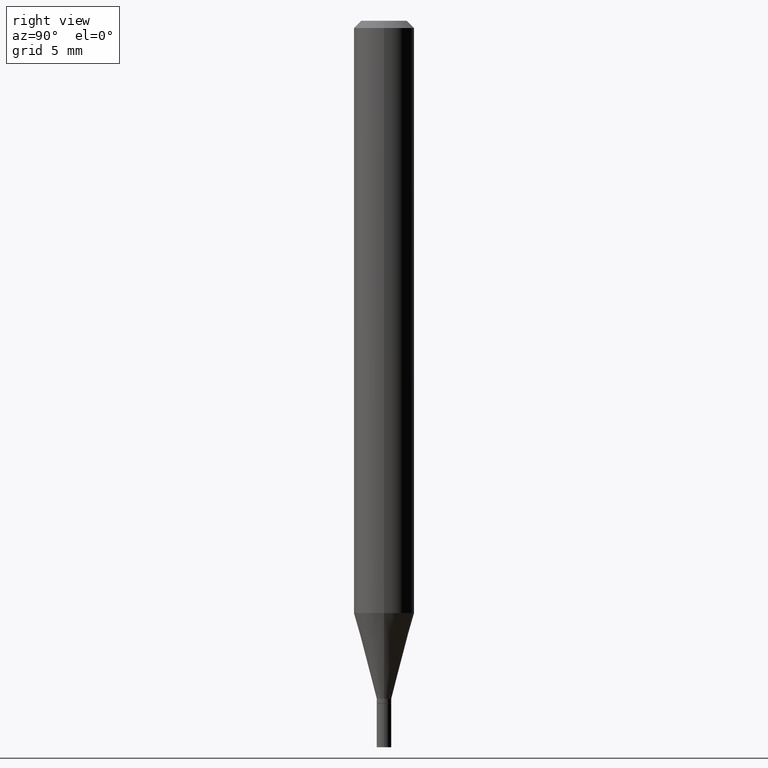
[diagram: clean part render]
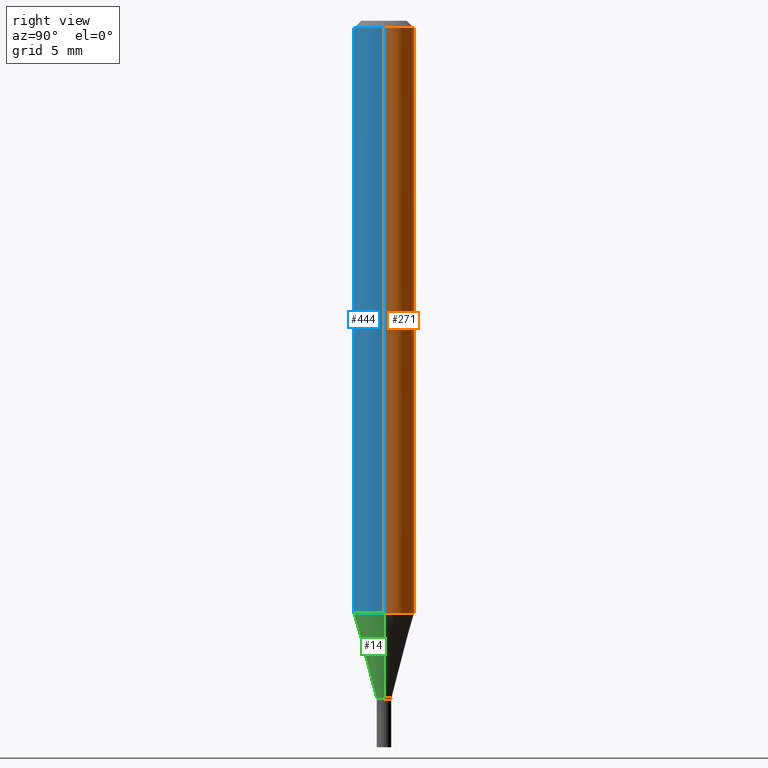
[diagram: same view with three faces highlighted in distinct colors, each labeled with its STEP entity id]
A machine part, right view with three faces highlighted in distinct colors.
Their STEP definitions:

[orange] entity #271 — the highlighted cylindrical surface (edge-blend (fillet) strip) has radius 1.5875 mm, axis along (-0, 0, 1).
#4 = CARTESIAN_POINT ( 'NONE',  ( -0.06250000000000000000, -3.825041341393883381E-15, -1.222727586640478536 ) ) ;
#7 = CARTESIAN_POINT ( 'NONE',  ( 0.06250000000000000000, -4.364351673553916694E-16, 3.047610484872459871E-30 ) ) ;
#18 = EDGE_CURVE ( 'NONE', #19, #363, #37, .T. ) ;
#19 = VERTEX_POINT ( 'NONE', #441 ) ;
#28 = FACE_OUTER_BOUND ( 'NONE', #74, .T. ) ;
#37 = CIRCLE ( 'NONE', #350, 0.06250000000000000000 ) ;
#46 = VERTEX_POINT ( 'NONE', #404 ) ;
#68 = ORIENTED_EDGE ( 'NONE', *, *, #72, .F. ) ;
#72 = EDGE_CURVE ( 'NONE', #19, #46, #90, .T. ) ;
#74 = EDGE_LOOP ( 'NONE', ( #435, #325, #193, #68 ) ) ;
#88 = DIRECTION ( 'NONE',  ( 1.000000000000000000, -6.982962677686266711E-15, 0.000000000000000000 ) ) ;
#90 = LINE ( 'NONE', #7, #461 ) ;
#103 = EDGE_CURVE ( 'NONE', #46, #250, #208, .T. ) ;
#124 = DIRECTION ( 'NONE',  ( -2.445468806185136597E-29, 3.491481338843145583E-15, 1.000000000000000000 ) ) ;
#153 = DIRECTION ( 'NONE',  ( 1.000000000000000000, -6.982962677686266711E-15, 4.876176775795935793E-29 ) ) ;
#158 = CARTESIAN_POINT ( 'NONE',  ( 2.990142171591324590E-29, -4.269130551243945997E-15, -1.222727586640478536 ) ) ;
#160 = LINE ( 'NONE', #338, #403 ) ;
#171 = CARTESIAN_POINT ( 'NONE',  ( -0.06250000000000000000, -1.716662175813234119E-15, -0.01499999999999999944 ) ) ;
#193 = ORIENTED_EDGE ( 'NONE', *, *, #103, .F. ) ;
#200 = DIRECTION ( 'NONE',  ( -2.445468806185136877E-29, 3.491481338843145188E-15, 1.000000000000000000 ) ) ;
#208 = CIRCLE ( 'NONE', #285, 0.06250000000000000000 ) ;
#250 = VERTEX_POINT ( 'NONE', #171 ) ;
#263 = DIRECTION ( 'NONE',  ( 1.000000000000000000, -6.982962677686270655E-15, 0.000000000000000000 ) ) ;
#271 = ADVANCED_FACE ( 'NONE', ( #28 ), #327, .T. ) ;
#285 = AXIS2_PLACEMENT_3D ( 'NONE', #311, #409, #88 ) ;
#311 = CARTESIAN_POINT ( 'NONE',  ( 3.668203209277705088E-31, -5.237222008264718399E-17, -0.01499999999999999944 ) ) ;
#325 = ORIENTED_EDGE ( 'NONE', *, *, #436, .T. ) ;
#327 = CYLINDRICAL_SURFACE ( 'NONE', #434, 0.06250000000000000000 ) ;
#331 = DIRECTION ( 'NONE',  ( -2.445468806185136597E-29, 3.491481338843145583E-15, 1.000000000000000000 ) ) ;
#338 = CARTESIAN_POINT ( 'NONE',  ( -0.06250000000000000000, 4.440892098500626162E-16, -3.074334431409316114E-30 ) ) ;
#350 = AXIS2_PLACEMENT_3D ( 'NONE', #158, #124, #263 ) ;
#363 = VERTEX_POINT ( 'NONE', #4 ) ;
#403 = VECTOR ( 'NONE', #429, 39.37007874015748143 ) ;
#404 = CARTESIAN_POINT ( 'NONE',  ( 0.06250000000000000000, -4.888073874380388472E-16, -0.01499999999999999944 ) ) ;
#409 = DIRECTION ( 'NONE',  ( -2.445468806185136597E-29, 3.491481338843145583E-15, 1.000000000000000000 ) ) ;
#429 = DIRECTION ( 'NONE',  ( -2.445468806185136877E-29, 3.491481338843145188E-15, 1.000000000000000000 ) ) ;
#434 = AXIS2_PLACEMENT_3D ( 'NONE', #463, #331, #153 ) ;
#435 = ORIENTED_EDGE ( 'NONE', *, *, #18, .T. ) ;
#436 = EDGE_CURVE ( 'NONE', #363, #250, #160, .T. ) ;
#441 = CARTESIAN_POINT ( 'NONE',  ( 0.06250000000000000000, -4.705565718599336877E-15, -1.222727586640478536 ) ) ;
#461 = VECTOR ( 'NONE', #200, 39.37007874015748143 ) ;
#463 = CARTESIAN_POINT ( 'NONE',  ( 0.000000000000000000, 0.000000000000000000, 0.000000000000000000 ) ) ;

[blue] entity #444 — the highlighted cylindrical surface (edge-blend (fillet) strip) has radius 1.5875 mm, axis along (-0, 0, 1).
#4 = CARTESIAN_POINT ( 'NONE',  ( -0.06250000000000000000, -3.825041341393883381E-15, -1.222727586640478536 ) ) ;
#7 = CARTESIAN_POINT ( 'NONE',  ( 0.06250000000000000000, -4.364351673553916694E-16, 3.047610484872459871E-30 ) ) ;
#19 = VERTEX_POINT ( 'NONE', #441 ) ;
#31 = AXIS2_PLACEMENT_3D ( 'NONE', #228, #372, #43 ) ;
#34 = CARTESIAN_POINT ( 'NONE',  ( 0.000000000000000000, 0.000000000000000000, 0.000000000000000000 ) ) ;
#43 = DIRECTION ( 'NONE',  ( 1.000000000000000000, -6.982962677686270655E-15, 0.000000000000000000 ) ) ;
#46 = VERTEX_POINT ( 'NONE', #404 ) ;
#56 = DIRECTION ( 'NONE',  ( 1.000000000000000000, -6.982962677686266711E-15, 0.000000000000000000 ) ) ;
#72 = EDGE_CURVE ( 'NONE', #19, #46, #90, .T. ) ;
#90 = LINE ( 'NONE', #7, #461 ) ;
#91 = CIRCLE ( 'NONE', #341, 0.06250000000000000000 ) ;
#134 = CARTESIAN_POINT ( 'NONE',  ( 3.668203209277705088E-31, -5.237222008264718399E-17, -0.01499999999999999944 ) ) ;
#138 = ORIENTED_EDGE ( 'NONE', *, *, #72, .T. ) ;
#160 = LINE ( 'NONE', #338, #403 ) ;
#166 = EDGE_CURVE ( 'NONE', #363, #19, #238, .T. ) ;
#171 = CARTESIAN_POINT ( 'NONE',  ( -0.06250000000000000000, -1.716662175813234119E-15, -0.01499999999999999944 ) ) ;
#175 = EDGE_CURVE ( 'NONE', #250, #46, #91, .T. ) ;
#195 = DIRECTION ( 'NONE',  ( -2.445468806185136597E-29, 3.491481338843145583E-15, 1.000000000000000000 ) ) ;
#200 = DIRECTION ( 'NONE',  ( -2.445468806185136877E-29, 3.491481338843145188E-15, 1.000000000000000000 ) ) ;
#221 = DIRECTION ( 'NONE',  ( 1.000000000000000000, -6.982962677686266711E-15, 4.876176775795935793E-29 ) ) ;
#228 = CARTESIAN_POINT ( 'NONE',  ( 2.990142171591324590E-29, -4.269130551243945997E-15, -1.222727586640478536 ) ) ;
#238 = CIRCLE ( 'NONE', #31, 0.06250000000000000000 ) ;
#250 = VERTEX_POINT ( 'NONE', #171 ) ;
#257 = CYLINDRICAL_SURFACE ( 'NONE', #319, 0.06250000000000000000 ) ;
#275 = DIRECTION ( 'NONE',  ( -2.445468806185136597E-29, 3.491481338843145583E-15, 1.000000000000000000 ) ) ;
#286 = ORIENTED_EDGE ( 'NONE', *, *, #175, .F. ) ;
#289 = ORIENTED_EDGE ( 'NONE', *, *, #166, .T. ) ;
#314 = EDGE_LOOP ( 'NONE', ( #361, #289, #138, #286 ) ) ;
#319 = AXIS2_PLACEMENT_3D ( 'NONE', #34, #195, #221 ) ;
#338 = CARTESIAN_POINT ( 'NONE',  ( -0.06250000000000000000, 4.440892098500626162E-16, -3.074334431409316114E-30 ) ) ;
#341 = AXIS2_PLACEMENT_3D ( 'NONE', #134, #275, #56 ) ;
#361 = ORIENTED_EDGE ( 'NONE', *, *, #436, .F. ) ;
#363 = VERTEX_POINT ( 'NONE', #4 ) ;
#372 = DIRECTION ( 'NONE',  ( -2.445468806185136597E-29, 3.491481338843145583E-15, 1.000000000000000000 ) ) ;
#395 = FACE_OUTER_BOUND ( 'NONE', #314, .T. ) ;
#403 = VECTOR ( 'NONE', #429, 39.37007874015748143 ) ;
#404 = CARTESIAN_POINT ( 'NONE',  ( 0.06250000000000000000, -4.888073874380388472E-16, -0.01499999999999999944 ) ) ;
#429 = DIRECTION ( 'NONE',  ( -2.445468806185136877E-29, 3.491481338843145188E-15, 1.000000000000000000 ) ) ;
#436 = EDGE_CURVE ( 'NONE', #363, #250, #160, .T. ) ;
#441 = CARTESIAN_POINT ( 'NONE',  ( 0.06250000000000000000, -4.705565718599336877E-15, -1.222727586640478536 ) ) ;
#444 = ADVANCED_FACE ( 'NONE', ( #395 ), #257, .T. ) ;
#461 = VECTOR ( 'NONE', #200, 39.37007874015748143 ) ;

[green] entity #14 — the highlighted conical surface has half-angle 15 deg.
#4 = CARTESIAN_POINT ( 'NONE',  ( -0.06250000000000000000, -3.825041341393883381E-15, -1.222727586640478536 ) ) ;
#14 = ADVANCED_FACE ( 'NONE', ( #77 ), #378, .T. ) ;
#19 = VERTEX_POINT ( 'NONE', #441 ) ;
#31 = AXIS2_PLACEMENT_3D ( 'NONE', #228, #372, #43 ) ;
#43 = DIRECTION ( 'NONE',  ( 1.000000000000000000, -6.982962677686270655E-15, 0.000000000000000000 ) ) ;
#44 = VERTEX_POINT ( 'NONE', #203 ) ;
#77 = FACE_OUTER_BOUND ( 'NONE', #346, .T. ) ;
#102 = VERTEX_POINT ( 'NONE', #274 ) ;
#110 = ORIENTED_EDGE ( 'NONE', *, *, #166, .F. ) ;
#113 = LINE ( 'NONE', #151, #269 ) ;
#151 = CARTESIAN_POINT ( 'NONE',  ( -0.01499999999999992138, -4.781492464016388930E-15, -1.400000000000000133 ) ) ;
#159 = LINE ( 'NONE', #307, #417 ) ;
#166 = EDGE_CURVE ( 'NONE', #363, #19, #238, .T. ) ;
#169 = DIRECTION ( 'NONE',  ( 1.000000000000000000, -6.982962677686239889E-15, 0.000000000000000000 ) ) ;
#198 = DIRECTION ( 'NONE',  ( -0.2588190451025213501, 5.211531920934551042E-15, 0.9659258262890682012 ) ) ;
#203 = CARTESIAN_POINT ( 'NONE',  ( -0.01499999999999992138, -4.303266902705136550E-15, -1.400000000000000133 ) ) ;
#211 = ORIENTED_EDGE ( 'NONE', *, *, #438, .F. ) ;
#218 = EDGE_CURVE ( 'NONE', #44, #102, #245, .T. ) ;
#228 = CARTESIAN_POINT ( 'NONE',  ( 2.990142171591324590E-29, -4.269130551243945997E-15, -1.222727586640478536 ) ) ;
#238 = CIRCLE ( 'NONE', #31, 0.06250000000000000000 ) ;
#239 = CARTESIAN_POINT ( 'NONE',  ( 3.423656328659191123E-29, -4.888073874380404052E-15, -1.400000000000000133 ) ) ;
#245 = CIRCLE ( 'NONE', #318, 0.01499999999999992138 ) ;
#254 = ORIENTED_EDGE ( 'NONE', *, *, #218, .T. ) ;
#259 = CARTESIAN_POINT ( 'NONE',  ( 3.423656328659191123E-29, -4.888073874380404052E-15, -1.400000000000000133 ) ) ;
#269 = VECTOR ( 'NONE', #198, 39.37007874015747433 ) ;
#274 = CARTESIAN_POINT ( 'NONE',  ( 0.01499999999999992138, -4.992818314545696633E-15, -1.400000000000000133 ) ) ;
#282 = DIRECTION ( 'NONE',  ( -2.445468806185136597E-29, 3.491481338843145583E-15, 1.000000000000000000 ) ) ;
#307 = CARTESIAN_POINT ( 'NONE',  ( 0.01499999999999992138, -4.992818314545696633E-15, -1.400000000000000133 ) ) ;
#310 = DIRECTION ( 'NONE',  ( 0.2588190451025213501, 1.565188264969621968E-15, 0.9659258262890682012 ) ) ;
#318 = AXIS2_PLACEMENT_3D ( 'NONE', #239, #282, #169 ) ;
#334 = DIRECTION ( 'NONE',  ( 1.000000000000000000, -6.982962677686239889E-15, 0.000000000000000000 ) ) ;
#346 = EDGE_LOOP ( 'NONE', ( #211, #254, #387, #110 ) ) ;
#363 = VERTEX_POINT ( 'NONE', #4 ) ;
#364 = EDGE_CURVE ( 'NONE', #102, #19, #159, .T. ) ;
#372 = DIRECTION ( 'NONE',  ( -2.445468806185136597E-29, 3.491481338843145583E-15, 1.000000000000000000 ) ) ;
#378 = CONICAL_SURFACE ( 'NONE', #456, 0.01499999999999992138, 0.2617993877991500740 ) ;
#387 = ORIENTED_EDGE ( 'NONE', *, *, #364, .T. ) ;
#396 = DIRECTION ( 'NONE',  ( -2.445468806185136597E-29, 3.491481338843145583E-15, 1.000000000000000000 ) ) ;
#417 = VECTOR ( 'NONE', #310, 39.37007874015747433 ) ;
#438 = EDGE_CURVE ( 'NONE', #44, #363, #113, .T. ) ;
#441 = CARTESIAN_POINT ( 'NONE',  ( 0.06250000000000000000, -4.705565718599336877E-15, -1.222727586640478536 ) ) ;
#456 = AXIS2_PLACEMENT_3D ( 'NONE', #259, #396, #334 ) ;